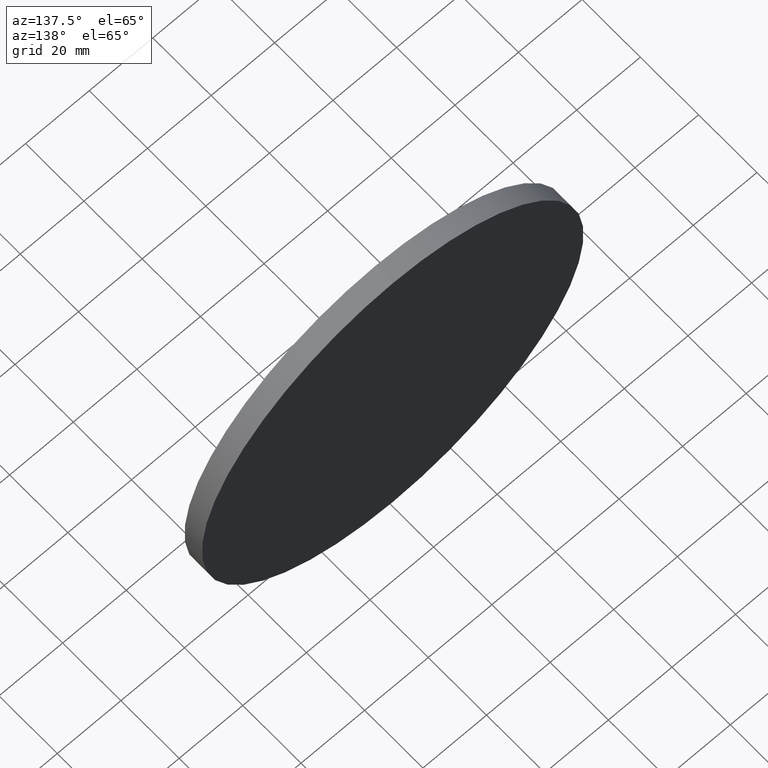
[diagram: clean part render]
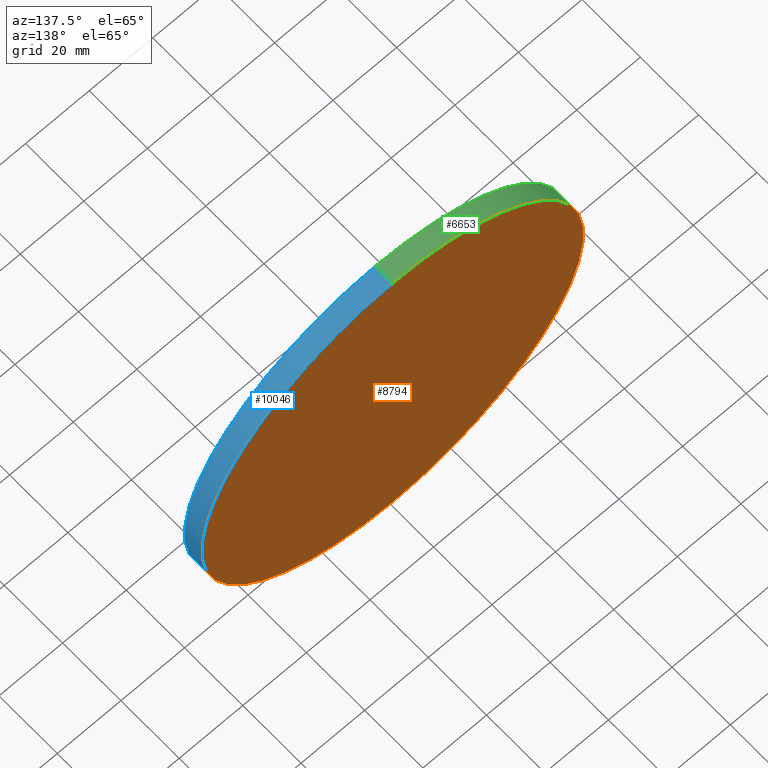
[diagram: same view with three faces highlighted in distinct colors, each labeled with its STEP entity id]
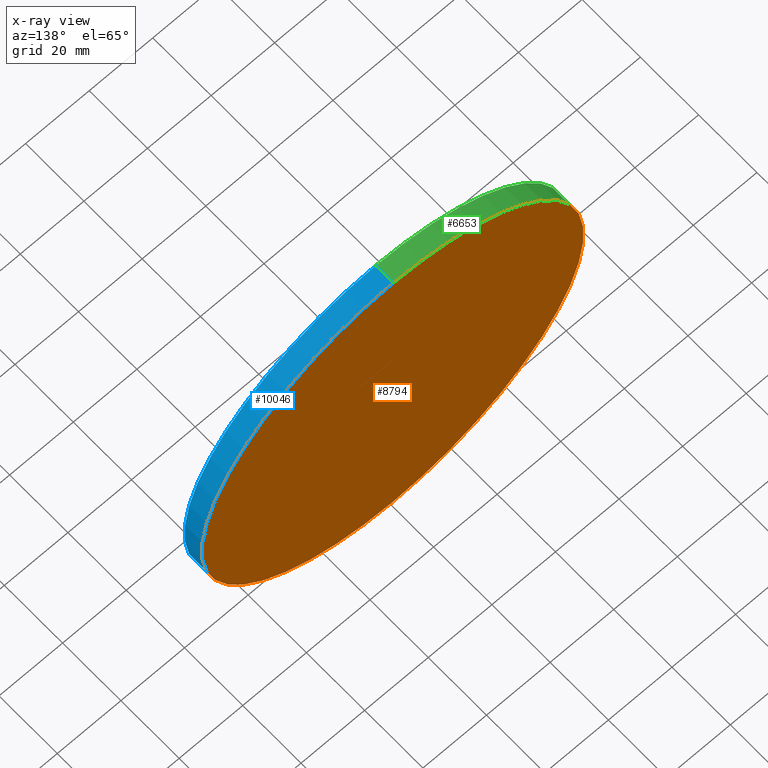
[diagram: x-ray of the same camera — body ghosted, the three highlighted faces saturated]
A machine part, auxiliary view with three faces highlighted in distinct colors.
The next image is the same camera in x-ray (body ghosted, the three faces saturated) — at least one of them is partly hidden behind the body in this view.
Their STEP definitions:

[orange] entity #8794 — the highlighted planar face has unit normal (0, 1, 0).
#267 = AXIS2_PLACEMENT_3D ( 'NONE', #6246, #3456, #7018 ) ;
#1271 = ORIENTED_EDGE ( 'NONE', *, *, #11447, .T. ) ;
#1809 = DIRECTION ( 'NONE',  ( 0.0000000000000000000, 0.0000000000000000000, 1.000000000000000000 ) ) ;
#2129 = EDGE_LOOP ( 'NONE', ( #2377, #1271 ) ) ;
#2377 = ORIENTED_EDGE ( 'NONE', *, *, #3552, .T. ) ;
#3190 = VERTEX_POINT ( 'NONE', #4405 ) ;
#3456 = DIRECTION ( 'NONE',  ( 0.0000000000000000000, 1.000000000000000000, 0.0000000000000000000 ) ) ;
#3550 = FACE_OUTER_BOUND ( 'NONE', #2129, .T. ) ;
#3552 = EDGE_CURVE ( 'NONE', #3190, #10803, #10049, .T. ) ;
#4405 = CARTESIAN_POINT ( 'NONE',  ( 0.0000000000000000000, 6.000000000000000000, -60.00000000000000000 ) ) ;
#5026 = PLANE ( 'NONE',  #267 ) ;
#5322 = AXIS2_PLACEMENT_3D ( 'NONE', #11026, #8228, #9169 ) ;
#6246 = CARTESIAN_POINT ( 'NONE',  ( 0.0000000000000000000, 6.000000000000000000, 0.0000000000000000000 ) ) ;
#7018 = DIRECTION ( 'NONE',  ( 0.0000000000000000000, -0.0000000000000000000, 1.000000000000000000 ) ) ;
#7460 = CARTESIAN_POINT ( 'NONE',  ( 7.347880794884118400E-015, 6.000000000000000000, 60.00000000000000000 ) ) ;
#8228 = DIRECTION ( 'NONE',  ( 0.0000000000000000000, 1.000000000000000000, 0.0000000000000000000 ) ) ;
#8794 = ADVANCED_FACE ( 'NONE', ( #3550 ), #5026, .T. ) ;
#9033 = DIRECTION ( 'NONE',  ( 0.0000000000000000000, 1.000000000000000000, 0.0000000000000000000 ) ) ;
#9169 = DIRECTION ( 'NONE',  ( 0.0000000000000000000, 0.0000000000000000000, 1.000000000000000000 ) ) ;
#9842 = AXIS2_PLACEMENT_3D ( 'NONE', #10839, #9033, #1809 ) ;
#10049 = CIRCLE ( 'NONE', #9842, 60.00000000000000000 ) ;
#10803 = VERTEX_POINT ( 'NONE', #7460 ) ;
#10839 = CARTESIAN_POINT ( 'NONE',  ( 0.0000000000000000000, 6.000000000000000000, 0.0000000000000000000 ) ) ;
#10899 = CIRCLE ( 'NONE', #5322, 60.00000000000000000 ) ;
#11026 = CARTESIAN_POINT ( 'NONE',  ( 0.0000000000000000000, 6.000000000000000000, 0.0000000000000000000 ) ) ;
#11447 = EDGE_CURVE ( 'NONE', #10803, #3190, #10899, .T. ) ;

[blue] entity #10046 — the highlighted cylindrical surface (partial cylindrical patch) has radius 60 mm, axis along (-0, -1, -0).
#86 = CARTESIAN_POINT ( 'NONE',  ( 0.0000000000000000000, 0.0000000000000000000, 0.0000000000000000000 ) ) ;
#593 = CIRCLE ( 'NONE', #7161, 60.00000000000000000 ) ;
#893 = EDGE_CURVE ( 'NONE', #3637, #5564, #593, .T. ) ;
#904 = CARTESIAN_POINT ( 'NONE',  ( 7.347880794884118400E-015, 0.0000000000000000000, 60.00000000000000000 ) ) ;
#1065 = LINE ( 'NONE', #4453, #2921 ) ;
#2228 = DIRECTION ( 'NONE',  ( -0.0000000000000000000, -1.000000000000000000, -0.0000000000000000000 ) ) ;
#2896 = DIRECTION ( 'NONE',  ( 0.0000000000000000000, 1.000000000000000000, 0.0000000000000000000 ) ) ;
#2921 = VECTOR ( 'NONE', #9956, 1000.000000000000000 ) ;
#3190 = VERTEX_POINT ( 'NONE', #4405 ) ;
#3243 = AXIS2_PLACEMENT_3D ( 'NONE', #4051, #10374, #5671 ) ;
#3637 = VERTEX_POINT ( 'NONE', #904 ) ;
#4051 = CARTESIAN_POINT ( 'NONE',  ( 0.0000000000000000000, 6.000000000000000000, 0.0000000000000000000 ) ) ;
#4405 = CARTESIAN_POINT ( 'NONE',  ( 0.0000000000000000000, 6.000000000000000000, -60.00000000000000000 ) ) ;
#4453 = CARTESIAN_POINT ( 'NONE',  ( 0.0000000000000000000, 6.000000000000000000, -60.00000000000000000 ) ) ;
#4733 = CARTESIAN_POINT ( 'NONE',  ( 7.347880794884118400E-015, 6.000000000000000000, 60.00000000000000000 ) ) ;
#4796 = VECTOR ( 'NONE', #2228, 1000.000000000000000 ) ;
#5007 = EDGE_CURVE ( 'NONE', #3190, #5564, #1065, .T. ) ;
#5023 = CYLINDRICAL_SURFACE ( 'NONE', #3243, 60.00000000000000000 ) ;
#5322 = AXIS2_PLACEMENT_3D ( 'NONE', #11026, #8228, #9169 ) ;
#5551 = FACE_OUTER_BOUND ( 'NONE', #10568, .T. ) ;
#5564 = VERTEX_POINT ( 'NONE', #9153 ) ;
#5671 = DIRECTION ( 'NONE',  ( 0.0000000000000000000, 0.0000000000000000000, -1.000000000000000000 ) ) ;
#6972 = ORIENTED_EDGE ( 'NONE', *, *, #5007, .F. ) ;
#7161 = AXIS2_PLACEMENT_3D ( 'NONE', #86, #2896, #8385 ) ;
#7330 = ORIENTED_EDGE ( 'NONE', *, *, #11657, .T. ) ;
#7460 = CARTESIAN_POINT ( 'NONE',  ( 7.347880794884118400E-015, 6.000000000000000000, 60.00000000000000000 ) ) ;
#8018 = ORIENTED_EDGE ( 'NONE', *, *, #893, .T. ) ;
#8228 = DIRECTION ( 'NONE',  ( 0.0000000000000000000, 1.000000000000000000, 0.0000000000000000000 ) ) ;
#8385 = DIRECTION ( 'NONE',  ( 0.0000000000000000000, 0.0000000000000000000, 1.000000000000000000 ) ) ;
#8481 = LINE ( 'NONE', #4733, #4796 ) ;
#9153 = CARTESIAN_POINT ( 'NONE',  ( 0.0000000000000000000, 0.0000000000000000000, -60.00000000000000000 ) ) ;
#9169 = DIRECTION ( 'NONE',  ( 0.0000000000000000000, 0.0000000000000000000, 1.000000000000000000 ) ) ;
#9813 = ORIENTED_EDGE ( 'NONE', *, *, #11447, .F. ) ;
#9956 = DIRECTION ( 'NONE',  ( -0.0000000000000000000, -1.000000000000000000, -0.0000000000000000000 ) ) ;
#10046 = ADVANCED_FACE ( 'NONE', ( #5551 ), #5023, .T. ) ;
#10374 = DIRECTION ( 'NONE',  ( -0.0000000000000000000, -1.000000000000000000, -0.0000000000000000000 ) ) ;
#10568 = EDGE_LOOP ( 'NONE', ( #9813, #7330, #8018, #6972 ) ) ;
#10803 = VERTEX_POINT ( 'NONE', #7460 ) ;
#10899 = CIRCLE ( 'NONE', #5322, 60.00000000000000000 ) ;
#11026 = CARTESIAN_POINT ( 'NONE',  ( 0.0000000000000000000, 6.000000000000000000, 0.0000000000000000000 ) ) ;
#11447 = EDGE_CURVE ( 'NONE', #10803, #3190, #10899, .T. ) ;
#11657 = EDGE_CURVE ( 'NONE', #10803, #3637, #8481, .T. ) ;

[green] entity #6653 — the highlighted cylindrical surface (partial cylindrical patch) has radius 60 mm, axis along (-0, -1, -0).
#904 = CARTESIAN_POINT ( 'NONE',  ( 7.347880794884118400E-015, 0.0000000000000000000, 60.00000000000000000 ) ) ;
#1065 = LINE ( 'NONE', #4453, #2921 ) ;
#1297 = ORIENTED_EDGE ( 'NONE', *, *, #3552, .F. ) ;
#1572 = EDGE_CURVE ( 'NONE', #5564, #3637, #3163, .T. ) ;
#1788 = DIRECTION ( 'NONE',  ( -0.0000000000000000000, -1.000000000000000000, -0.0000000000000000000 ) ) ;
#1809 = DIRECTION ( 'NONE',  ( 0.0000000000000000000, 0.0000000000000000000, 1.000000000000000000 ) ) ;
#2228 = DIRECTION ( 'NONE',  ( -0.0000000000000000000, -1.000000000000000000, -0.0000000000000000000 ) ) ;
#2349 = ORIENTED_EDGE ( 'NONE', *, *, #5007, .T. ) ;
#2454 = CYLINDRICAL_SURFACE ( 'NONE', #6055, 60.00000000000000000 ) ;
#2921 = VECTOR ( 'NONE', #9956, 1000.000000000000000 ) ;
#3163 = CIRCLE ( 'NONE', #7637, 60.00000000000000000 ) ;
#3190 = VERTEX_POINT ( 'NONE', #4405 ) ;
#3552 = EDGE_CURVE ( 'NONE', #3190, #10803, #10049, .T. ) ;
#3637 = VERTEX_POINT ( 'NONE', #904 ) ;
#4346 = FACE_OUTER_BOUND ( 'NONE', #4846, .T. ) ;
#4405 = CARTESIAN_POINT ( 'NONE',  ( 0.0000000000000000000, 6.000000000000000000, -60.00000000000000000 ) ) ;
#4453 = CARTESIAN_POINT ( 'NONE',  ( 0.0000000000000000000, 6.000000000000000000, -60.00000000000000000 ) ) ;
#4733 = CARTESIAN_POINT ( 'NONE',  ( 7.347880794884118400E-015, 6.000000000000000000, 60.00000000000000000 ) ) ;
#4796 = VECTOR ( 'NONE', #2228, 1000.000000000000000 ) ;
#4846 = EDGE_LOOP ( 'NONE', ( #5679, #1297, #2349, #6612 ) ) ;
#5007 = EDGE_CURVE ( 'NONE', #3190, #5564, #1065, .T. ) ;
#5564 = VERTEX_POINT ( 'NONE', #9153 ) ;
#5679 = ORIENTED_EDGE ( 'NONE', *, *, #11657, .F. ) ;
#5777 = CARTESIAN_POINT ( 'NONE',  ( 0.0000000000000000000, 0.0000000000000000000, 0.0000000000000000000 ) ) ;
#5851 = DIRECTION ( 'NONE',  ( 0.0000000000000000000, 1.000000000000000000, 0.0000000000000000000 ) ) ;
#6055 = AXIS2_PLACEMENT_3D ( 'NONE', #7242, #1788, #8170 ) ;
#6612 = ORIENTED_EDGE ( 'NONE', *, *, #1572, .T. ) ;
#6653 = ADVANCED_FACE ( 'NONE', ( #4346 ), #2454, .T. ) ;
#6671 = DIRECTION ( 'NONE',  ( 0.0000000000000000000, 0.0000000000000000000, 1.000000000000000000 ) ) ;
#7242 = CARTESIAN_POINT ( 'NONE',  ( 0.0000000000000000000, 6.000000000000000000, 0.0000000000000000000 ) ) ;
#7460 = CARTESIAN_POINT ( 'NONE',  ( 7.347880794884118400E-015, 6.000000000000000000, 60.00000000000000000 ) ) ;
#7637 = AXIS2_PLACEMENT_3D ( 'NONE', #5777, #5851, #6671 ) ;
#8170 = DIRECTION ( 'NONE',  ( 0.0000000000000000000, 0.0000000000000000000, -1.000000000000000000 ) ) ;
#8481 = LINE ( 'NONE', #4733, #4796 ) ;
#9033 = DIRECTION ( 'NONE',  ( 0.0000000000000000000, 1.000000000000000000, 0.0000000000000000000 ) ) ;
#9153 = CARTESIAN_POINT ( 'NONE',  ( 0.0000000000000000000, 0.0000000000000000000, -60.00000000000000000 ) ) ;
#9842 = AXIS2_PLACEMENT_3D ( 'NONE', #10839, #9033, #1809 ) ;
#9956 = DIRECTION ( 'NONE',  ( -0.0000000000000000000, -1.000000000000000000, -0.0000000000000000000 ) ) ;
#10049 = CIRCLE ( 'NONE', #9842, 60.00000000000000000 ) ;
#10803 = VERTEX_POINT ( 'NONE', #7460 ) ;
#10839 = CARTESIAN_POINT ( 'NONE',  ( 0.0000000000000000000, 6.000000000000000000, 0.0000000000000000000 ) ) ;
#11657 = EDGE_CURVE ( 'NONE', #10803, #3637, #8481, .T. ) ;